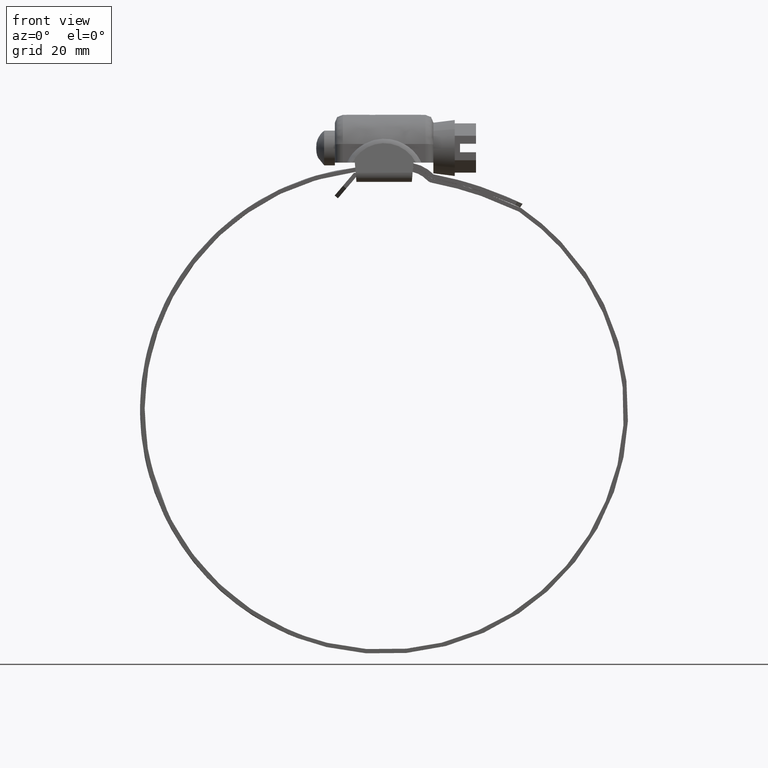
[diagram: clean part render]
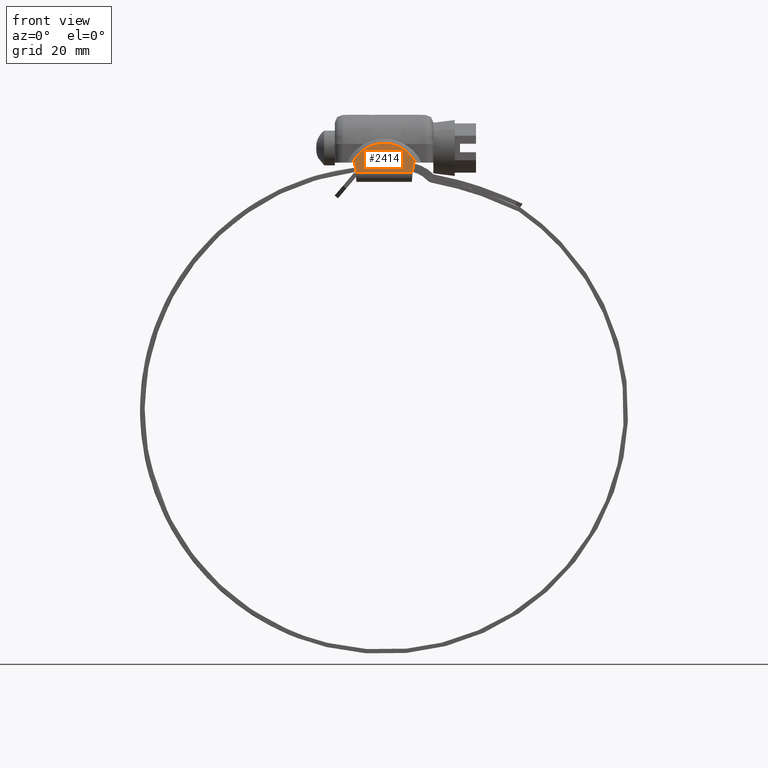
[diagram: same view with one face highlighted and labeled with its STEP entity id]
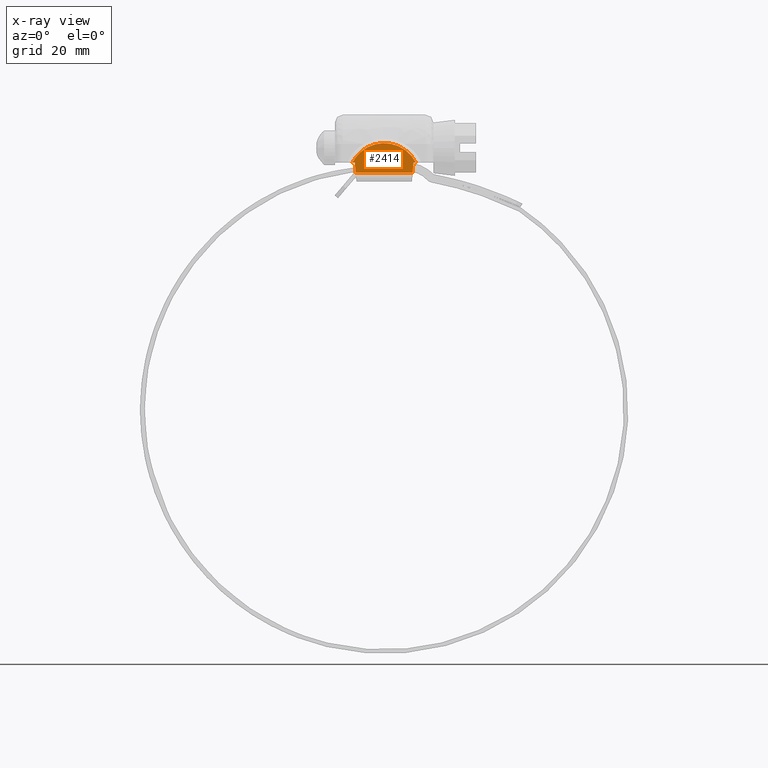
[diagram: x-ray of the same camera — body ghosted, the highlighted face saturated]
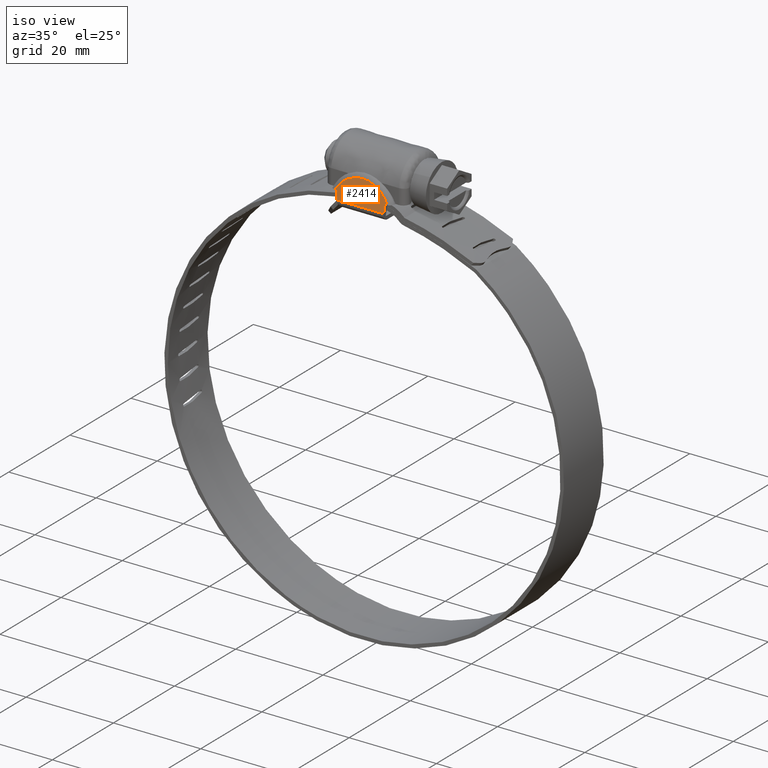
[diagram: same view with one face highlighted and labeled with its STEP entity id]
A machine part, front view. The second image highlights one B-rep face of the part: STEP entity #2414.
The next image is the same camera in x-ray: the body ghosted, the highlighted face saturated — about 0% of this face is hidden behind the body in this view.
A second angle (iso view) of the same face is appended — the face is thin or edge-on in the first view.
In plain terms, the highlighted face is a freeform B-spline surface patch.
Its self-contained STEP definition (entity closure, byte-faithful):
#1364=CARTESIAN_POINT('',(-5.343755088336830,-7.786144508388070,11.202144060042160));
#1365=VERTEX_POINT('',#1364);
#1384=CARTESIAN_POINT('',(5.343755088336931,-7.786144508388049,11.202144060042141));
#1385=VERTEX_POINT('',#1384);
#1397=CARTESIAN_POINT('',(-5.343755088336830,-7.786144508388070,11.202144060042160));
#1398=CARTESIAN_POINT('',(5.343755088336931,-7.786144508388049,11.202144060042141));
#1399=QUASI_UNIFORM_CURVE('',1,(#1397,#1398),.UNSPECIFIED.,.F.,.U.);
#1400=EDGE_CURVE('',#1365,#1385,#1399,.T.);
#1587=CARTESIAN_POINT('',(-5.962146346480231,-7.501606321312799,13.077083000000201));
#1588=VERTEX_POINT('',#1587);
#1612=CARTESIAN_POINT('',(5.962146346480231,-7.501606321312799,13.077083000000201));
#1613=VERTEX_POINT('',#1612);
#1614=CARTESIAN_POINT('',(5.962146346480231,-7.501606321312799,13.077083000000201));
#1615=CARTESIAN_POINT('',(4.098355137342957,-6.947681100976019,16.727123706694861));
#1616=CARTESIAN_POINT('',(7.585472E-015,-6.947681100976018,16.727123706694851));
#1617=CARTESIAN_POINT('',(-4.098355137342947,-6.947681100976019,16.727123706694861));
#1618=CARTESIAN_POINT('',(-5.962146346480231,-7.501606321312799,13.077083000000201));
#1626=(BOUNDED_CURVE()B_SPLINE_CURVE(2,(#1614,#1615,#1616,#1617,#1618),.UNSPECIFIED.,.F.,.U.)B_SPLINE_CURVE_WITH_KNOTS((3,2,3),(0.0,0.500000000000000,1.0),.UNSPECIFIED.)CURVE()GEOMETRIC_REPRESENTATION_ITEM()RATIONAL_B_SPLINE_CURVE((1.0,0.852867418584550,1.0,0.852867418584550,1.0))REPRESENTATION_ITEM(''));
#1627=EDGE_CURVE('',#1613,#1588,#1626,.T.);
#2381=CARTESIAN_POINT('',(-6.557764743382014,-6.905799915372399,17.003096034159331));
#2382=CARTESIAN_POINT('',(-6.557764743382014,-7.828025836424293,10.926170794031510));
#2383=CARTESIAN_POINT('',(6.557765063216467,-6.905799915372399,17.003096034159331));
#2384=CARTESIAN_POINT('',(6.557765063216467,-7.828025836424293,10.926170794031510));
#2385=B_SPLINE_SURFACE_WITH_KNOTS('',1,1,((#2381,#2383),(#2382,#2384)),.UNSPECIFIED.,.F.,.F.,.U.,(2,2),(2,2),(0.0,6.146504781057486),(0.0,13.115529806598479),.UNSPECIFIED.);
#2386=CARTESIAN_POINT('',(-5.500000000000000,-7.501606321312620,13.077083000000201));
#2387=VERTEX_POINT('',#2386);
#2388=CARTESIAN_POINT('',(-5.500000000000000,-7.501606321312620,13.077083000000201));
#2389=CARTESIAN_POINT('',(-5.343755088336830,-7.786144508388070,11.202144060042160));
#2390=QUASI_UNIFORM_CURVE('',1,(#2388,#2389),.UNSPECIFIED.,.F.,.U.);
#2391=EDGE_CURVE('',#2387,#1365,#2390,.T.);
#2392=ORIENTED_EDGE('',*,*,#2391,.T.);
#2393=ORIENTED_EDGE('',*,*,#1400,.T.);
#2394=CARTESIAN_POINT('',(5.500000000000100,-7.501606321312799,13.077083000000201));
#2395=VERTEX_POINT('',#2394);
#2396=CARTESIAN_POINT('',(5.343755088336931,-7.786144508388049,11.202144060042141));
#2397=CARTESIAN_POINT('',(5.500000000000100,-7.501606321312799,13.077083000000201));
#2398=QUASI_UNIFORM_CURVE('',1,(#2396,#2397),.UNSPECIFIED.,.F.,.U.);
#2399=EDGE_CURVE('',#1385,#2395,#2398,.T.);
#2400=ORIENTED_EDGE('',*,*,#2399,.T.);
#2401=CARTESIAN_POINT('',(5.500000000000100,-7.501606321312799,13.077083000000201));
#2402=CARTESIAN_POINT('',(5.962146346480231,-7.501606321312799,13.077083000000201));
#2403=QUASI_UNIFORM_CURVE('',1,(#2401,#2402),.UNSPECIFIED.,.F.,.U.);
#2404=EDGE_CURVE('',#2395,#1613,#2403,.T.);
#2405=ORIENTED_EDGE('',*,*,#2404,.T.);
#2406=ORIENTED_EDGE('',*,*,#1627,.T.);
#2407=CARTESIAN_POINT('',(-5.962146346480231,-7.501606321312799,13.077083000000201));
#2408=CARTESIAN_POINT('',(-5.500000000000000,-7.501606321312620,13.077083000000201));
#2409=QUASI_UNIFORM_CURVE('',1,(#2407,#2408),.UNSPECIFIED.,.F.,.U.);
#2410=EDGE_CURVE('',#1588,#2387,#2409,.T.);
#2411=ORIENTED_EDGE('',*,*,#2410,.T.);
#2412=EDGE_LOOP('',(#2392,#2393,#2400,#2405,#2406,#2411));
#2413=FACE_OUTER_BOUND('',#2412,.T.);
#2414=ADVANCED_FACE('',(#2413),#2385,.T.);